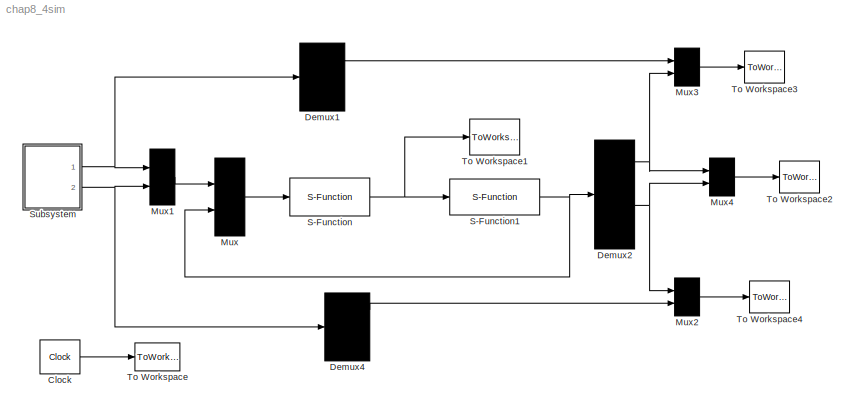
MODEL chap8_4sim
KIND model
CONFIG AbsTol = auto
CONFIG FixedStep = 0.001
CONFIG MaxStep = auto
CONFIG MinStep = auto
CONFIG RelTol = 1e-3
CONFIG Solver = ode45
CONFIG SolverMode = Auto
CONFIG StartTime = 0.0
CONFIG StopTime = 2
BLOCK [Clock] Clock
  Decimation = 10
BLOCK [Demux] Demux1
  Outputs = 3
  Ports = [1, 3]
BLOCK [Demux] Demux2
  Ports = [1, 4]
BLOCK [Demux] Demux4
  Outputs = 3
  Ports = [1, 3]
BLOCK [Mux] Mux
  Inputs = 2
  Ports = [2, 1]
BLOCK [Mux] Mux1
  Inputs = 2
  Ports = [2, 1]
BLOCK [Mux] Mux2
  Inputs = 2
  Ports = [2, 1]
BLOCK [Mux] Mux3
  Inputs = 2
  Ports = [2, 1]
BLOCK [Mux] Mux4
  Inputs = 2
  Ports = [2, 1]
BLOCK [S-Function] S-Function
  FunctionName = chap8_4ctrl
  Ports = [1, 1]
BLOCK [S-Function] S-Function1
  FunctionName = chap8_4plant
  Parameters = 0.1,0.1
  Ports = [1, 1]
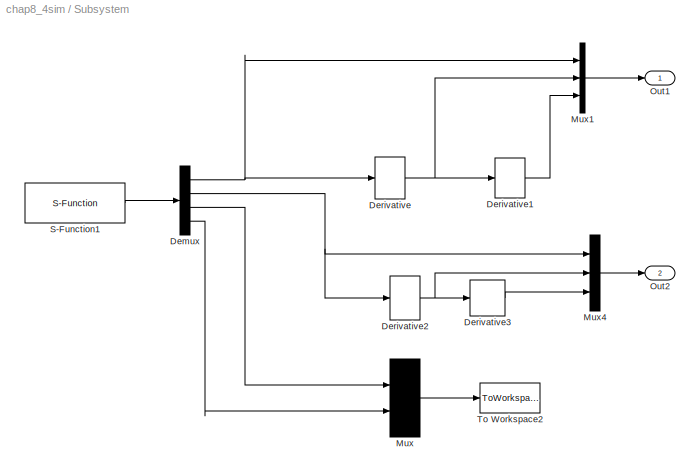
BLOCK [SubSystem] Subsystem
  Ports = [0, 2]
  TreatAsAtomicUnit = off
BLOCK [Demux] Subsystem/Demux
  Ports = [1, 4]
BLOCK [Derivative] Subsystem/Derivative
BLOCK [Derivative] Subsystem/Derivative1
BLOCK [Derivative] Subsystem/Derivative2
BLOCK [Derivative] Subsystem/Derivative3
BLOCK [Mux] Subsystem/Mux
  Inputs = 2
  Ports = [2, 1]
BLOCK [Mux] Subsystem/Mux1
  DisplayOption = bar
  Inputs = 3
  Ports = [3, 1]
BLOCK [Mux] Subsystem/Mux4
  DisplayOption = bar
  Inputs = 3
  Ports = [3, 1]
BLOCK [Outport] Subsystem/Out1
BLOCK [Outport] Subsystem/Out2
  Port = 2
BLOCK [S-Function] Subsystem/S-Function1
  FunctionName = chap8_4input
  Ports = [0, 1]
BLOCK [ToWorkspace] Subsystem/To Workspace2
  MaxDataPoints = inf
  SampleTime = -1
  SaveFormat = Array
  VariableName = y0
BLOCK [ToWorkspace] To Workspace
  MaxDataPoints = inf
  SampleTime = -1
  SaveFormat = Array
  VariableName = t
BLOCK [ToWorkspace] To Workspace1
  MaxDataPoints = inf
  SampleTime = -1
  SaveFormat = Array
  VariableName = tol
BLOCK [ToWorkspace] To Workspace2
  MaxDataPoints = inf
  SampleTime = -1
  SaveFormat = Array
  VariableName = q
BLOCK [ToWorkspace] To Workspace3
  MaxDataPoints = inf
  SampleTime = -1
  SaveFormat = Array
  VariableName = q1
BLOCK [ToWorkspace] To Workspace4
  MaxDataPoints = inf
  SampleTime = -1
  SaveFormat = Array
  VariableName = q2
LINE Clock:1 -> To Workspace:1
LINE Demux1:1 -> Mux3:1
NET Demux2:1 -> Mux3:2, Mux4:1
NET Demux2:3 -> Mux2:1, Mux4:2
LINE Demux4:1 -> Mux2:2
LINE Mux1:1 -> Mux:1
LINE Mux2:1 -> To Workspace4:1
LINE Mux3:1 -> To Workspace3:1
LINE Mux4:1 -> To Workspace2:1
LINE Mux:1 -> S-Function:1
NET S-Function1:1 -> Demux2:1, Mux:2
NET S-Function:1 -> S-Function1:1, To Workspace1:1
NET Subsystem/Demux:1 -> Subsystem/Derivative:1, Subsystem/Mux1:1
NET Subsystem/Demux:2 -> Subsystem/Derivative2:1, Subsystem/Mux4:1
LINE Subsystem/Demux:3 -> Subsystem/Mux:1
LINE Subsystem/Demux:4 -> Subsystem/Mux:2
LINE Subsystem/Derivative1:1 -> Subsystem/Mux1:3
NET Subsystem/Derivative2:1 -> Subsystem/Derivative3:1, Subsystem/Mux4:2
LINE Subsystem/Derivative3:1 -> Subsystem/Mux4:3
NET Subsystem/Derivative:1 -> Subsystem/Derivative1:1, Subsystem/Mux1:2
LINE Subsystem/Mux1:1 -> Subsystem/Out1:1
LINE Subsystem/Mux4:1 -> Subsystem/Out2:1
LINE Subsystem/Mux:1 -> Subsystem/To Workspace2:1
LINE Subsystem/S-Function1:1 -> Subsystem/Demux:1
NET Subsystem:1 -> Demux1:1, Mux1:1
NET Subsystem:2 -> Demux4:1, Mux1:2
note: NET lines group one-source signal fan-out (src -> all destinations, sorted); 1:1 wires keep LINE
